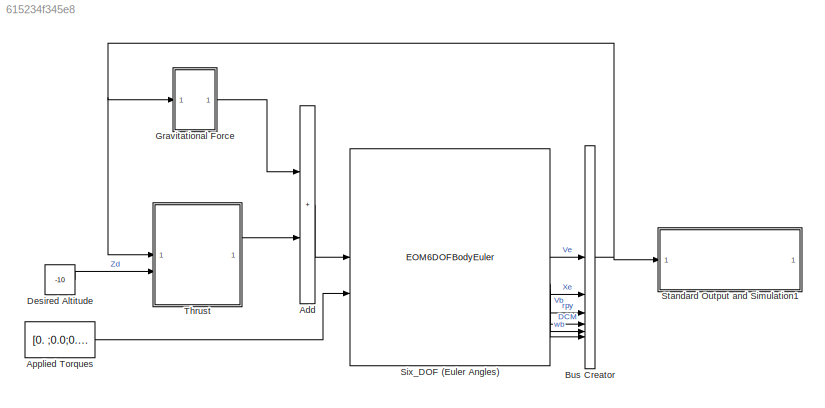
MODEL slx_615234f345e8
KIND model
CONFIG AbsTol = auto
CONFIG EnableMultiTasking = off
CONFIG FixedStep = auto
CONFIG MaxStep = auto
CONFIG MinStep = auto
CONFIG RelTol = 1e-3
CONFIG SampleTimeConstraint = Unconstrained
CONFIG SolverName = VariableStepAuto
CONFIG StartTime = 0.0
CONFIG StopTime = 5
BLOCK [Sum] Add
  IconShape = rectangular
BLOCK [Constant] Applied Torques
  Value = [0. ;0.0;0.5]
BLOCK [BusCreator] Bus Creator
  DisplayOption = bar
  InheritFromInputs = on
  Inputs = 8
BLOCK [Constant] Desired Altitude
  Value = -10
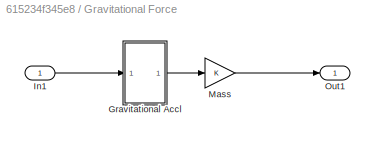
BLOCK [SubSystem] Gravitational Force
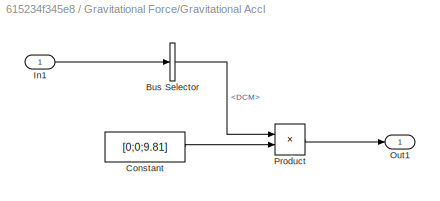
BLOCK [SubSystem] Gravitational Force/Gravitational Accl
BLOCK [BusSelector] Gravitational Force/Gravitational Accl/Bus Selector
  OutputSignals = DCM
BLOCK [Constant] Gravitational Force/Gravitational Accl/Constant
  Value = [0;0;9.81]
BLOCK [Inport] Gravitational Force/Gravitational Accl/In1
BLOCK [Outport] Gravitational Force/Gravitational Accl/Out1
BLOCK [Product] Gravitational Force/Gravitational Accl/Product
  Multiplication = Matrix(*)
BLOCK [Inport] Gravitational Force/In1
BLOCK [Gain] Gravitational Force/Mass
BLOCK [Outport] Gravitational Force/Out1
BLOCK [EOM6DOFBodyEuler] Six_DOF (Euler Angles)
  Vm_statename = ''
  eul_statename = ''
  mass_f = 2.0
  mass_statename = ''
  pm_statename = ''
  vre_flag = on
  xme_statename = ''
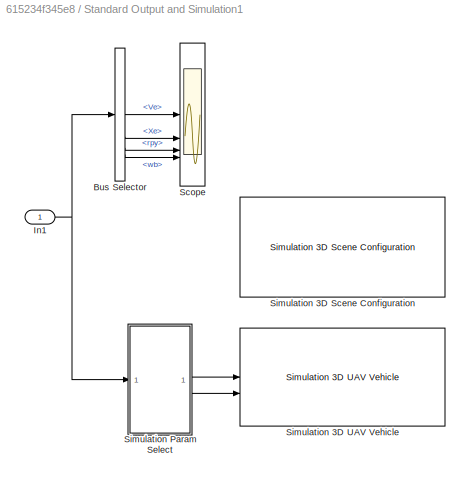
BLOCK [SubSystem] Standard Output and Simulation1
BLOCK [BusSelector] Standard Output and Simulation1/Bus Selector
  OutputSignals = Ve,Xe,rpy,wb
BLOCK [Inport] Standard Output and Simulation1/In1
BLOCK [Scope] Standard Output and Simulation1/Scope
  ActiveDisplayYMaximum = 28.62107
  ActiveDisplayYMinimum = -24.48846
  Floating = off
  GraphicalSettings = {"GraphicalSettings":{"LegacySettings":true,"Style":{"AxesScalingProperties":{"ScaleAxesLimitsAtStop":false},"Style":{"AxesColor":"[0 0 0]","ChannelNames":["","","",""],"ColorOrder":"[1 1 0.0666666666666667;0.0745098039215686 0.623529411764706 1;1 0.411764705882353 0.16078431372549;0.392156862745098 0.831372549019608 0.0745098039215686;0.717647058823529 0.274509803921569 1;0.0588235294117647 1 1;1...<+679ch>
  LayoutDimensionsString = [4 1]
  MultipleDisplayCache = [{"MaxYLimMag":28.62107,"MaxYLimReal":28.62107,"MinYLimMag":0,"MinYLimReal":-24.48846,"PlotAsMagnitudePhase":false,"ShowGrid":true,"ShowLegend":true,"Title":"%<SignalLabel>","YLabel":""},{"MaxYLimMag":0.5625,"MaxYLimReal":29.65655,"MinYLimMag":0,"MinYLimReal":-15.9109,"PlotAsMagnitudePhase":false,"ShowGrid":true,"ShowLegend":true,"Title":"%<SignalLabel>","YLabel":""},{"MaxYLimMag":0.5625,"MaxYLimR...<+332ch>
  NumInputPorts = 4
  ScopeFrameLocation = window
  ShowLegend = on
  Visible = on
  WasSavedAsWebScope = on
  WindowPosition = [2355.000000,158.000000,1261.000000,731.000000,]
BLOCK [Reference] Standard Output and Simulation1/Simulation 3D Scene Configuration  REF=uavsim3dlib/Simulation 3D Scene Configuration
  Priority = 0
  SourceBlock = uavsim3dlib/Simulation 3D Scene Configuration
  SourceType = Simulation 3D Scene Configuration
BLOCK [Reference] Standard Output and Simulation1/Simulation 3D UAV Vehicle  REF=uavsim3dlib/Simulation 3D UAV Vehicle
  Priority = -1
  SourceBlock = uavsim3dlib/Simulation 3D UAV Vehicle
  SourceType = Simulation 3D UAV Vehicle
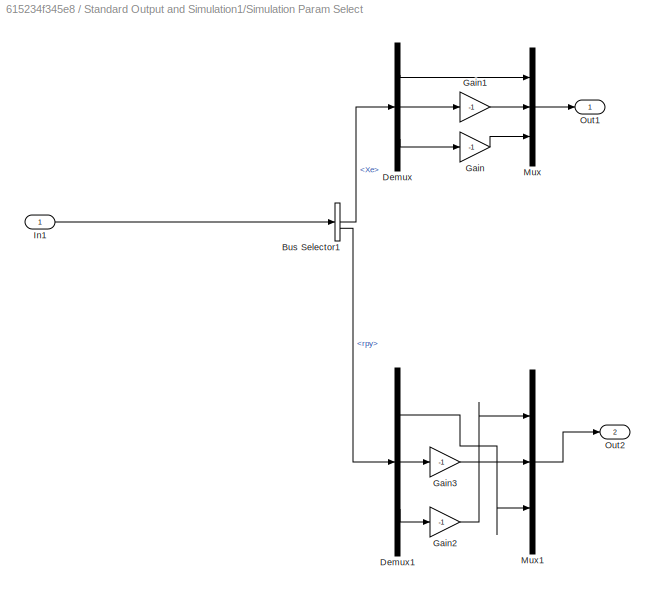
BLOCK [SubSystem] Standard Output and Simulation1/Simulation Param Select
BLOCK [BusSelector] Standard Output and Simulation1/Simulation Param Select/Bus Selector1
  OutputSignals = Xe,rpy
BLOCK [Demux] Standard Output and Simulation1/Simulation Param Select/Demux
  Outputs = 3
BLOCK [Demux] Standard Output and Simulation1/Simulation Param Select/Demux1
  Outputs = 3
BLOCK [Gain] Standard Output and Simulation1/Simulation Param Select/Gain
  Gain = -1
BLOCK [Gain] Standard Output and Simulation1/Simulation Param Select/Gain1
  Gain = -1
BLOCK [Gain] Standard Output and Simulation1/Simulation Param Select/Gain2
  Gain = -1
BLOCK [Gain] Standard Output and Simulation1/Simulation Param Select/Gain3
  Gain = -1
BLOCK [Inport] Standard Output and Simulation1/Simulation Param Select/In1
BLOCK [Mux] Standard Output and Simulation1/Simulation Param Select/Mux
  DisplayOption = bar
  Inputs = 3
BLOCK [Mux] Standard Output and Simulation1/Simulation Param Select/Mux1
  DisplayOption = bar
  Inputs = 3
BLOCK [Outport] Standard Output and Simulation1/Simulation Param Select/Out1
BLOCK [Outport] Standard Output and Simulation1/Simulation Param Select/Out2
  Port = 2
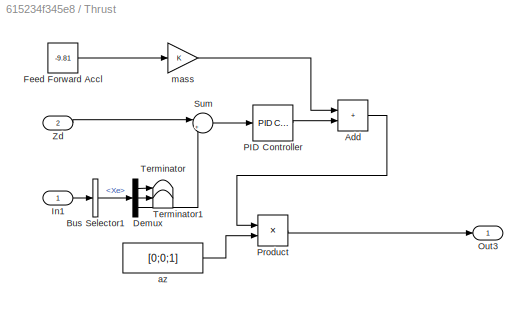
BLOCK [SubSystem] Thrust
BLOCK [Sum] Thrust/Add
  IconShape = rectangular
BLOCK [BusSelector] Thrust/Bus Selector1
  OutputSignals = Xe
BLOCK [Demux] Thrust/Demux
  Outputs = 3
BLOCK [Constant] Thrust/Feed Forward Accl
  Value = -9.81
BLOCK [Inport] Thrust/In1
BLOCK [Outport] Thrust/Out3
BLOCK [Reference] Thrust/PID Controller  REF=slpidlib/PID Controller
  SourceBlock = slpidlib/PID Controller
  SourceType = PID 1dof
BLOCK [Product] Thrust/Product
BLOCK [Sum] Thrust/Sum
  Inputs = |+-
BLOCK [Terminator] Thrust/Terminator
BLOCK [Terminator] Thrust/Terminator1
BLOCK [Inport] Thrust/Zd
  Port = 2
BLOCK [Constant] Thrust/az
  Value = [0;0;1]
BLOCK [Gain] Thrust/mass
LINE Add:1 -> Six_DOF (Euler Angles):1
LINE Applied Torques:1 -> Six_DOF (Euler Angles):2
NET Bus Creator:1 -> Gravitational Force:1, Standard Output and Simulation1:1, Thrust:1
LINE Desired Altitude:1 -> Thrust:2
LINE Gravitational Force/Gravitational Accl/Bus Selector:1 -> Gravitational Force/Gravitational Accl/Product:1
LINE Gravitational Force/Gravitational Accl/Constant:1 -> Gravitational Force/Gravitational Accl/Product:2
LINE Gravitational Force/Gravitational Accl/In1:1 -> Gravitational Force/Gravitational Accl/Bus Selector:1
LINE Gravitational Force/Gravitational Accl/Product:1 -> Gravitational Force/Gravitational Accl/Out1:1
LINE Gravitational Force/Gravitational Accl:1 -> Gravitational Force/Mass:1
LINE Gravitational Force/In1:1 -> Gravitational Force/Gravitational Accl:1
LINE Gravitational Force/Mass:1 -> Gravitational Force/Out1:1
LINE Gravitational Force:1 -> Add:1
LINE Six_DOF (Euler Angles):1 -> Bus Creator:1
LINE Six_DOF (Euler Angles):2 -> Bus Creator:2
LINE Six_DOF (Euler Angles):3 -> Bus Creator:3
LINE Six_DOF (Euler Angles):4 -> Bus Creator:4
LINE Six_DOF (Euler Angles):5 -> Bus Creator:5
LINE Six_DOF (Euler Angles):6 -> Bus Creator:6
LINE Standard Output and Simulation1/Bus Selector:1 -> Standard Output and Simulation1/Scope:1
LINE Standard Output and Simulation1/Bus Selector:2 -> Standard Output and Simulation1/Scope:2
LINE Standard Output and Simulation1/Bus Selector:3 -> Standard Output and Simulation1/Scope:3
LINE Standard Output and Simulation1/Bus Selector:4 -> Standard Output and Simulation1/Scope:4
NET Standard Output and Simulation1/In1:1 -> Standard Output and Simulation1/Bus Selector:1, Standard Output and Simulation1/Simulation Param Select:1
LINE Standard Output and Simulation1/Simulation Param Select/Bus Selector1:1 -> Standard Output and Simulation1/Simulation Param Select/Demux:1
LINE Standard Output and Simulation1/Simulation Param Select/Bus Selector1:2 -> Standard Output and Simulation1/Simulation Param Select/Demux1:1
LINE Standard Output and Simulation1/Simulation Param Select/Demux1:1 -> Standard Output and Simulation1/Simulation Param Select/Mux1:3
LINE Standard Output and Simulation1/Simulation Param Select/Demux1:2 -> Standard Output and Simulation1/Simulation Param Select/Gain3:1
LINE Standard Output and Simulation1/Simulation Param Select/Demux1:3 -> Standard Output and Simulation1/Simulation Param Select/Gain2:1
LINE Standard Output and Simulation1/Simulation Param Select/Demux:1 -> Standard Output and Simulation1/Simulation Param Select/Mux:1
LINE Standard Output and Simulation1/Simulation Param Select/Demux:2 -> Standard Output and Simulation1/Simulation Param Select/Gain1:1
LINE Standard Output and Simulation1/Simulation Param Select/Demux:3 -> Standard Output and Simulation1/Simulation Param Select/Gain:1
LINE Standard Output and Simulation1/Simulation Param Select/Gain1:1 -> Standard Output and Simulation1/Simulation Param Select/Mux:2
LINE Standard Output and Simulation1/Simulation Param Select/Gain2:1 -> Standard Output and Simulation1/Simulation Param Select/Mux1:1
LINE Standard Output and Simulation1/Simulation Param Select/Gain3:1 -> Standard Output and Simulation1/Simulation Param Select/Mux1:2
LINE Standard Output and Simulation1/Simulation Param Select/Gain:1 -> Standard Output and Simulation1/Simulation Param Select/Mux:3
LINE Standard Output and Simulation1/Simulation Param Select/In1:1 -> Standard Output and Simulation1/Simulation Param Select/Bus Selector1:1
LINE Standard Output and Simulation1/Simulation Param Select/Mux1:1 -> Standard Output and Simulation1/Simulation Param Select/Out2:1
LINE Standard Output and Simulation1/Simulation Param Select/Mux:1 -> Standard Output and Simulation1/Simulation Param Select/Out1:1
LINE Standard Output and Simulation1/Simulation Param Select:1 -> Standard Output and Simulation1/Simulation 3D UAV Vehicle:1
LINE Standard Output and Simulation1/Simulation Param Select:2 -> Standard Output and Simulation1/Simulation 3D UAV Vehicle:2
LINE Thrust/Add:1 -> Thrust/Product:1
LINE Thrust/Bus Selector1:1 -> Thrust/Demux:1
LINE Thrust/Demux:1 -> Thrust/Terminator:1
LINE Thrust/Demux:2 -> Thrust/Terminator1:1
LINE Thrust/Demux:3 -> Thrust/Sum:2
LINE Thrust/Feed Forward Accl:1 -> Thrust/mass:1
LINE Thrust/In1:1 -> Thrust/Bus Selector1:1
LINE Thrust/PID Controller:1 -> Thrust/Add:2
LINE Thrust/Product:1 -> Thrust/Out3:1
LINE Thrust/Sum:1 -> Thrust/PID Controller:1
LINE Thrust/Zd:1 -> Thrust/Sum:1
LINE Thrust/az:1 -> Thrust/Product:2
LINE Thrust/mass:1 -> Thrust/Add:1
LINE Thrust:1 -> Add:2
note: NET lines group one-source signal fan-out (src -> all destinations, sorted); 1:1 wires keep LINE
